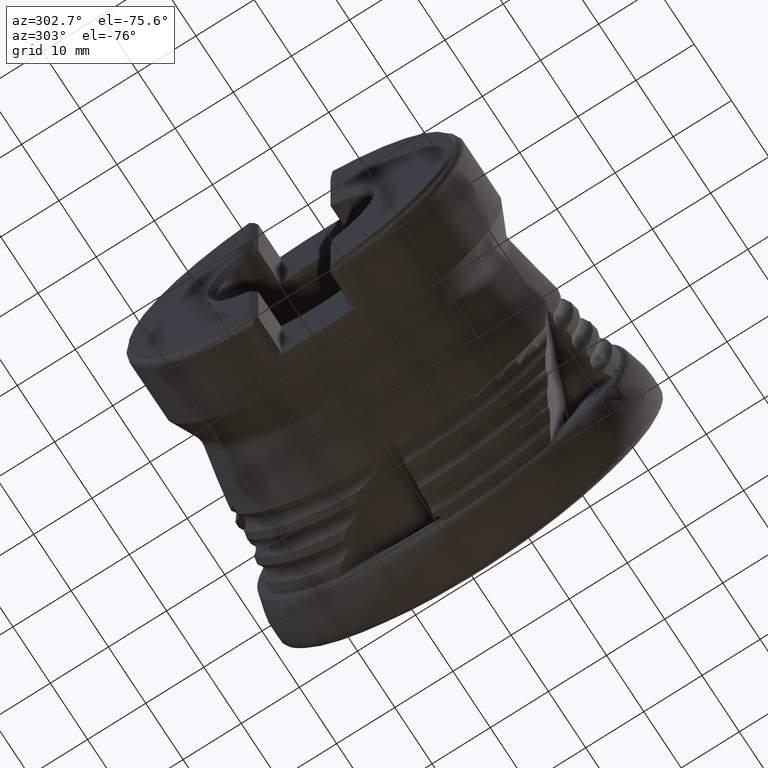
[diagram: clean part render]
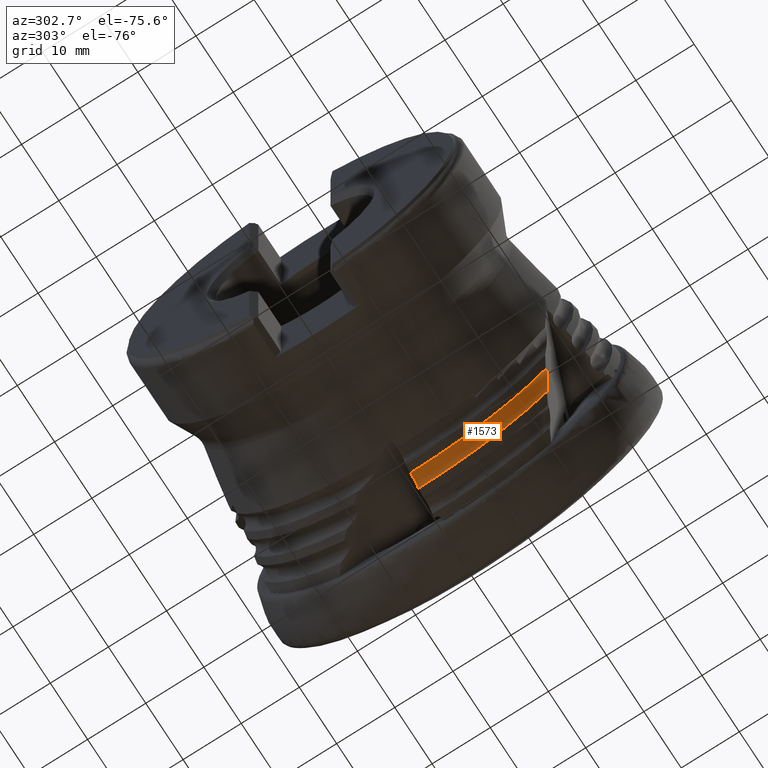
[diagram: same view with one face highlighted and labeled with its STEP entity id]
A machine part, auxiliary view. The second image highlights one B-rep face of the part: STEP entity #1573.
In plain terms, the highlighted toroidal blend (fillet) surface has major radius 30.3525 mm and minor (blend) radius 1.5 mm.
Its self-contained STEP definition (entity closure, byte-faithful):
#82 = CARTESIAN_POINT ( 'NONE',  ( -15.27466240551513700, -22.53700000690519500, -18.35397375433323600 ) ) ;
#117 = CARTESIAN_POINT ( 'NONE',  ( -17.06199857491666100, -23.38012827279617400, -17.56440795500813900 ) ) ;
#281 = CIRCLE ( 'NONE', #7542, 29.76133970845062700 ) ;
#441 = CARTESIAN_POINT ( 'NONE',  ( -16.01308758861848600, 0.01301518038786654600, -28.84797074378837700 ) ) ;
#512 = DIRECTION ( 'NONE',  ( 0.0000000000000000000, 0.0000000000000000000, -1.000000000000000000 ) ) ;
#598 = CARTESIAN_POINT ( 'NONE',  ( -14.67140022153120800, -22.03811905848198900, -20.00146618640682300 ) ) ;
#799 = TOROIDAL_SURFACE ( 'NONE', #4820, 30.35249336935941500, 1.500000000000000900 ) ;
#924 = CARTESIAN_POINT ( 'NONE',  ( -15.55806586909611700, -22.71972662864782000, -17.91277480488792400 ) ) ;
#1008 = ORIENTED_EDGE ( 'NONE', *, *, #3331, .T. ) ;
#1144 = DIRECTION ( 'NONE',  ( 1.000000000000000000, -0.0000000000000000000, -0.0000000000000000000 ) ) ;
#1289 = CARTESIAN_POINT ( 'NONE',  ( -15.65093048893288100, 0.03833967179158417200, -28.90134192351514700 ) ) ;
#1573 = ADVANCED_FACE ( 'NONE', ( #3071 ), #799, .F. ) ;
#1734 = CARTESIAN_POINT ( 'NONE',  ( -17.11548180697854700, -0.06407173280699245100, -29.29660678926846600 ) ) ;
#1741 = CARTESIAN_POINT ( 'NONE',  ( -14.67140022153120800, -22.03811905848198900, -20.00146618640682300 ) ) ;
#1781 = CARTESIAN_POINT ( 'NONE',  ( -15.90347409100825100, -22.91804761932211300, -17.53217575017044500 ) ) ;
#1782 = VERTEX_POINT ( 'NONE', #598 ) ;
#2101 = CARTESIAN_POINT ( 'NONE',  ( -17.11548180697854700, -0.06407173280699245100, -29.29660678926846600 ) ) ;
#2139 = CARTESIAN_POINT ( 'NONE',  ( -15.31265512980150400, 0.06199418921468338000, -29.04051353321217400 ) ) ;
#2416 = ORIENTED_EDGE ( 'NONE', *, *, #2822, .T. ) ;
#2584 = VERTEX_POINT ( 'NONE', #1734 ) ;
#2627 = CARTESIAN_POINT ( 'NONE',  ( -16.27078081543591300, -23.10049550547310900, -17.31075554966767900 ) ) ;
#2695 = ORIENTED_EDGE ( 'NONE', *, *, #9472, .T. ) ;
#2822 = EDGE_CURVE ( 'NONE', #2584, #6751, #3950, .T. ) ;
#2858 = DIRECTION ( 'NONE',  ( 0.0000000000000000000, 0.0000000000000000000, -1.000000000000000000 ) ) ;
#3009 = CARTESIAN_POINT ( 'NONE',  ( -14.92158463928645400, 0.08934050186158284900, -29.33450664660235000 ) ) ;
#3071 = FACE_OUTER_BOUND ( 'NONE', #7042, .T. ) ;
#3331 = EDGE_CURVE ( 'NONE', #1782, #8099, #3809, .T. ) ;
#3504 = CARTESIAN_POINT ( 'NONE',  ( -16.52491805264088100, -23.21016846854874800, -17.26427895371018600 ) ) ;
#3809 = B_SPLINE_CURVE_WITH_KNOTS ( 'NONE', 3,
 ( #1741, #6893, #4343, #10376, #5203, #82, #6078, #924, #6931, #1781, #7808, #2627, #8679, #3504, #9542, #4379, #10419, #5242, #117, #6114 ),
 .UNSPECIFIED., .F., .F.,
 ( 4, 2, 2, 2, 2, 2, 2, 2, 2, 4 ),
 ( 9.776625813916422800E-007, 0.001095047834862235600, 0.001642082921002661900, 0.002189118007143089000, 0.002736153093283515300, 0.003283188179423941700, 0.003556705722494155500, 0.003830223265564368900, 0.004103740808634582700, 0.004377258351704795700 ),
 .UNSPECIFIED. ) ;
#3825 = CARTESIAN_POINT ( 'NONE',  ( -16.93291795555400400, -0.05130562470074908500, -29.13371066035156400 ) ) ;
#3863 = CARTESIAN_POINT ( 'NONE',  ( -14.67140022153121000, 0.1068351005931500200, -29.76114795338183300 ) ) ;
#3950 = B_SPLINE_CURVE_WITH_KNOTS ( 'NONE', 3,
 ( #2101, #4664, #3825, #9863, #4699, #10741, #5574, #441, #6437, #1289, #7298, #2139, #8184, #3009, #9044, #3863 ),
 .UNSPECIFIED., .F., .F.,
 ( 4, 2, 2, 2, 2, 2, 2, 4 ),
 ( 2.804482524103655600E-007, 0.0003656740452368264600, 0.0007310676422212426200, 0.001096461239205658500, 0.001461854836190074700, 0.001827248433174490700, 0.002192642030158906900, 0.002923429224127728900 ),
 .UNSPECIFIED. ) ;
#4343 = CARTESIAN_POINT ( 'NONE',  ( -14.84913927099268500, -22.21694627157272000, -19.31087641516175100 ) ) ;
#4379 = CARTESIAN_POINT ( 'NONE',  ( -16.78156738078544300, -23.30387040333990400, -17.32724589277539800 ) ) ;
#4479 = AXIS2_PLACEMENT_3D ( 'NONE', #10808, #5637, #512 ) ;
#4632 = CARTESIAN_POINT ( 'NONE',  ( -14.67140022153113000, 0.0000000000000000000, 0.0000000000000000000 ) ) ;
#4664 = CARTESIAN_POINT ( 'NONE',  ( -17.02861550326071000, -0.05799744912268924700, -29.20895835785844200 ) ) ;
#4699 = CARTESIAN_POINT ( 'NONE',  ( -16.61107511416863100, -0.02880018085583507800, -28.95606696222849100 ) ) ;
#4820 = AXIS2_PLACEMENT_3D ( 'NONE', #5426, #1144, #2858 ) ;
#4961 = ORIENTED_EDGE ( 'NONE', *, *, #6153, .T. ) ;
#5203 = CARTESIAN_POINT ( 'NONE',  ( -15.11539133360563300, -22.42463249719773100, -18.66427842440305800 ) ) ;
#5242 = CARTESIAN_POINT ( 'NONE',  ( -17.00140205633114500, -23.36665648182465200, -17.49378883879564500 ) ) ;
#5426 = CARTESIAN_POINT ( 'NONE',  ( -16.04999999999999400, 0.0000000000000000000, 0.0000000000000000000 ) ) ;
#5498 = DIRECTION ( 'NONE',  ( 0.0000000000000000000, 0.0000000000000000000, 1.000000000000000000 ) ) ;
#5574 = CARTESIAN_POINT ( 'NONE',  ( -16.25719959230268000, -0.004054793786908312100, -28.86185215249685900 ) ) ;
#5637 = DIRECTION ( 'NONE',  ( 1.000000000000000000, -0.0000000000000000000, -0.0000000000000000000 ) ) ;
#6078 = CARTESIAN_POINT ( 'NONE',  ( -15.36275524202823000, -22.59612774248084900, -18.20182271119511000 ) ) ;
#6114 = CARTESIAN_POINT ( 'NONE',  ( -17.11548180697871400, -23.38976431025095300, -17.64126412882262300 ) ) ;
#6153 = EDGE_CURVE ( 'NONE', #8099, #2584, #9111, .T. ) ;
#6437 = CARTESIAN_POINT ( 'NONE',  ( -15.89183116280084100, 0.02149425567295697500, -28.85582050833230000 ) ) ;
#6751 = VERTEX_POINT ( 'NONE', #7355 ) ;
#6893 = CARTESIAN_POINT ( 'NONE',  ( -14.74603110760762300, -22.12289026232559100, -19.64909456659793500 ) ) ;
#6931 = CARTESIAN_POINT ( 'NONE',  ( -15.66415753663783200, -22.78360493145613600, -17.77677255068474000 ) ) ;
#7042 = EDGE_LOOP ( 'NONE', ( #2695, #1008, #4961, #2416 ) ) ;
#7298 = CARTESIAN_POINT ( 'NONE',  ( -15.53368422989722200, 0.04653832889824926300, -28.93887442158540300 ) ) ;
#7355 = CARTESIAN_POINT ( 'NONE',  ( -14.67140022153121000, 0.1068351005931500200, -29.76114795338183300 ) ) ;
#7542 = AXIS2_PLACEMENT_3D ( 'NONE', #4632, #10671, #5498 ) ;
#7808 = CARTESIAN_POINT ( 'NONE',  ( -16.03928187511405300, -22.99014244807153800, -17.42042947367471900 ) ) ;
#8099 = VERTEX_POINT ( 'NONE', #8951 ) ;
#8184 = CARTESIAN_POINT ( 'NONE',  ( -15.20667213824380700, 0.06940524193454858400, -29.10596243023258400 ) ) ;
#8679 = CARTESIAN_POINT ( 'NONE',  ( -16.35410083636872300, -23.13825548188482600, -17.28389814110092400 ) ) ;
#8951 = CARTESIAN_POINT ( 'NONE',  ( -17.11548180697871400, -23.38976431025095300, -17.64126412882262300 ) ) ;
#9044 = CARTESIAN_POINT ( 'NONE',  ( -14.76875652878867100, 0.1000272844040429900, -29.53413117173570900 ) ) ;
#9111 = CIRCLE ( 'NONE', #4479, 29.29667685168329400 ) ;
#9472 = EDGE_CURVE ( 'NONE', #6751, #1782, #281, .T. ) ;
#9542 = CARTESIAN_POINT ( 'NONE',  ( -16.61395000211059900, -23.24484541147125700, -17.27212828680954000 ) ) ;
#9863 = CARTESIAN_POINT ( 'NONE',  ( -16.72448908634721200, -0.03673085836013097900, -29.00713389972778300 ) ) ;
#10376 = CARTESIAN_POINT ( 'NONE',  ( -15.04371673909276700, -22.37104434835350400, -18.82338742045206500 ) ) ;
#10419 = CARTESIAN_POINT ( 'NONE',  ( -16.86106757291963400, -23.32859163087018900, -17.37448598337530100 ) ) ;
#10671 = DIRECTION ( 'NONE',  ( -1.000000000000000000, 0.0000000000000000000, 0.0000000000000000000 ) ) ;
#10741 = CARTESIAN_POINT ( 'NONE',  ( -16.37891303128468900, -0.01256582654559939800, -28.88395802140327700 ) ) ;
#10808 = CARTESIAN_POINT ( 'NONE',  ( -17.11548180697855400, 0.0000000000000000000, 0.0000000000000000000 ) ) ;